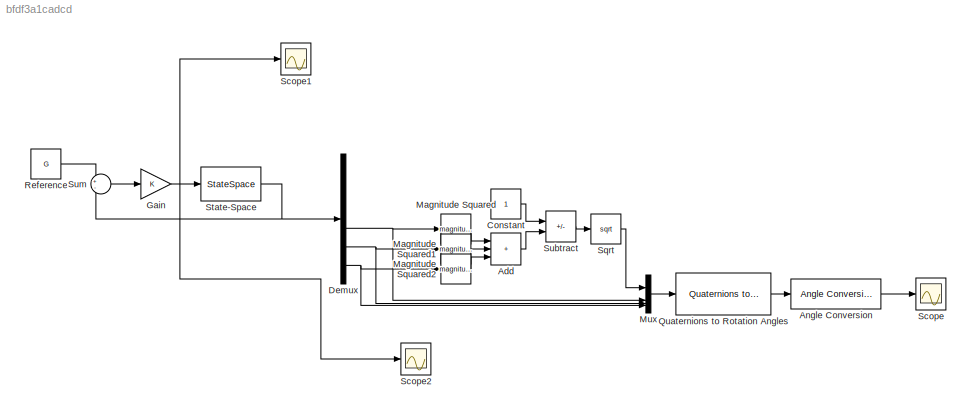
MODEL slx_bfdf3a1cadcd
KIND model
CONFIG AbsTol = auto
CONFIG EnableMultiTasking = off
CONFIG FixedStep = auto
CONFIG MaxStep = auto
CONFIG MinStep = auto
CONFIG RelTol = 1e-3
CONFIG SampleTimeConstraint = Unconstrained
CONFIG SolverName = VariableStepAuto
CONFIG StartTime = 0.0
CONFIG StopTime = 30.0
BLOCK [Sum] Add
  IconShape = rectangular
  Inputs = +++
BLOCK [Reference] Angle Conversion  REF=aerolibconvert2/Angle Conversion
  SourceBlock = aerolibconvert2/Angle Conversion
  SourceType = Angle Conversion
BLOCK [Constant] Constant
BLOCK [Demux] Demux
  Outputs = 6
BLOCK [Gain] Gain
  Gain = K
  Multiplication = Matrix(K*u)
BLOCK [Math] Magnitude Squared
  Operator = magnitude^2
BLOCK [Math] Magnitude Squared1
  Operator = magnitude^2
BLOCK [Math] Magnitude Squared2
  Operator = magnitude^2
BLOCK [Mux] Mux
  DisplayOption = bar
BLOCK [Reference] Quaternions to Rotation Angles  REF=sharedtransform/Quaternions to Rotation Angles
  AttributesFormatString = Rotation Order: %<rotationOrder>
  LibrarySourceBlock = aerolibtransform2/Quaternions to Rotation Angles
  SourceBlock = sharedtransform/Quaternions to Rotation Angles
  SourceType = Quat2Ang
BLOCK [Constant] Reference
  Value = G
BLOCK [Scope] Scope
  Floating = off
  NumInputPorts = 1
  ScopeSpecificationString = Simulink.scopes.TimeScopeBlockCfg('CurrentConfiguration', extmgr.ConfigurationSet(extmgr.Configuration('Core','General UI',true),extmgr.Configuration('Core','Source UI',true),extmgr.Configuration('Sources','WiredSimulink',true,'DataLogging',true,'DataLoggingSaveFormat','Array'),extmgr.Configuration('Visuals','Time Domain',true,'SerializedDisplays',{struct('MinYLimReal','-6.875','MaxYLimReal','11.8...<+1453ch>
BLOCK [Scope] Scope1
  Floating = off
  NumInputPorts = 1
  ScopeSpecificationString = Simulink.scopes.TimeScopeBlockCfg('CurrentConfiguration', extmgr.ConfigurationSet(extmgr.Configuration('Core','General UI',true),extmgr.Configuration('Core','Source UI',true),extmgr.Configuration('Sources','WiredSimulink',true,'DataLoggingVariableName','ScopeData1'),extmgr.Configuration('Visuals','Time Domain',true,'SerializedDisplays',{struct('MinYLimReal','-0.35299','MaxYLimReal','0.21407','YLab...<+1412ch>
BLOCK [Scope] Scope2
  Floating = off
  NumInputPorts = 1
  ScopeSpecificationString = Simulink.scopes.TimeScopeBlockCfg('CurrentConfiguration', extmgr.ConfigurationSet(extmgr.Configuration('Core','General UI',true),extmgr.Configuration('Core','Source UI',true),extmgr.Configuration('Sources','WiredSimulink',true,'DataLogging',true,'DataLoggingSaveFormat','Array','DataLoggingVariableName','ScopeData2'),extmgr.Configuration('Visuals','Time Domain',true,'SerializedDisplays',{struct('Mi...<+1464ch>
BLOCK [Sqrt] Sqrt
BLOCK [StateSpace] State-Space
  A = A
  B = B
  C = C
  D = D
  InitialCondition = I
BLOCK [Sum] Subtract
  IconShape = rectangular
  Inputs = +-
BLOCK [Sum] Sum
  Inputs = +-
LINE Add:1 -> Subtract:2
LINE Angle Conversion:1 -> Scope:1
LINE Constant:1 -> Subtract:1
NET Demux:4 -> Magnitude Squared:1, Mux:2
NET Demux:5 -> Magnitude Squared1:1, Mux:3
NET Demux:6 -> Magnitude Squared2:1, Mux:4
NET Gain:1 -> Scope1:1, Scope2:1, State-Space:1
LINE Magnitude Squared1:1 -> Add:2
LINE Magnitude Squared2:1 -> Add:3
LINE Magnitude Squared:1 -> Add:1
LINE Mux:1 -> Quaternions to Rotation Angles:1
LINE Quaternions to Rotation Angles:1 -> Angle Conversion:1
LINE Reference:1 -> Sum:1
LINE Sqrt:1 -> Mux:1
NET State-Space:1 -> Demux:1, Sum:2
LINE Subtract:1 -> Sqrt:1
LINE Sum:1 -> Gain:1
note: NET lines group one-source signal fan-out (src -> all destinations, sorted); 1:1 wires keep LINE
